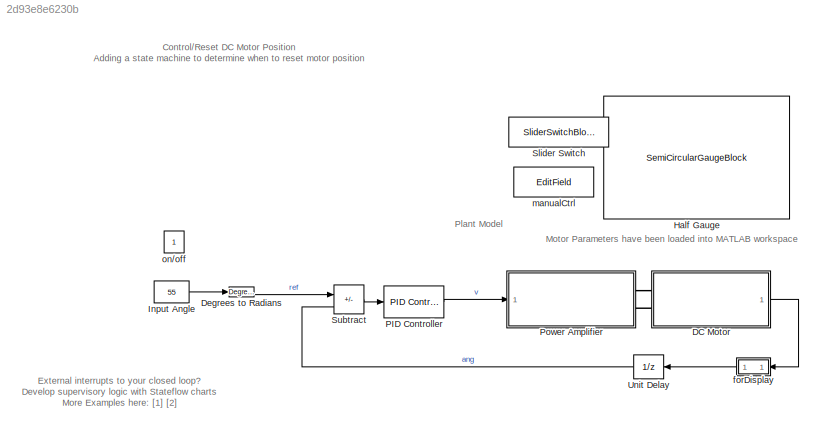
MODEL slx_2d93e8e6230b
KIND model
CONFIG AbsTol = auto
CONFIG EnableMultiTasking = off
CONFIG FixedStep = auto
CONFIG MaxStep = auto
CONFIG MinStep = auto
CONFIG PostLoadFcn = load('dcmtr_params');
CONFIG RelTol = 1e-3
CONFIG SampleTimeConstraint = Unconstrained
CONFIG SolverName = ode15s
CONFIG StartTime = 0.0
CONFIG StopTime = inf
BLOCK [SubSystem] DC Motor
  Ports = [0, 1, 0, 0, 0, 2]
  ReferencedSubsystem = dcmtr
  RequestExecContextInheritance = off
BLOCK [Reference] Degrees to Radians  REF=simulink_extras/Transformations/Degrees to
Radians
  Ports = [1, 1]
  SourceBlock = simulink_extras/Transformations/Degrees to\nRadians
  SourceProductBaseCode = SL
  SourceType = DegreesToRadians
BLOCK [SemiCircularGaugeBlock] Half Gauge
  LabelPosition = Hide
  ScaleMax = 180
BLOCK [Constant] Input Angle
  Value = 55
BLOCK [Reference] PID Controller  REF=slpidlib/PID Controller
  Ports = [1, 1]
  SourceBlock = slpidlib/PID Controller
  SourceProductBaseCode = SL
  SourceType = PID 1dof
BLOCK [SubSystem] Power Amplifier
  Ports = [1, 0, 0, 0, 0, 0, 2]
  ReferencedSubsystem = powerAmp
  RequestExecContextInheritance = off
BLOCK [SliderSwitchBlock] Slider Switch
  LabelPosition = Hide
BLOCK [Sum] Subtract
  IconShape = rectangular
  Inputs = +-
  Ports = [2, 1]
BLOCK [UnitDelay] Unit Delay
  HasFrameUpgradeWarning = on
  NameLocation = top
  SampleTime = Ts
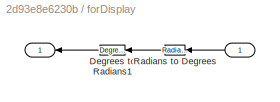
BLOCK [SubSystem] forDisplay
  Ports = [1, 1]
  RequestExecContextInheritance = off
BLOCK [Inport] forDisplay/ 
  NameLocation = top
BLOCK [Outport] forDisplay/  
BLOCK [Reference] forDisplay/Degrees to Radians1  REF=simulink_extras/Transformations/Degrees to
Radians
  NameLocation = top
  Ports = [1, 1]
  SourceBlock = simulink_extras/Transformations/Degrees to\nRadians
  SourceProductBaseCode = SL
  SourceType = DegreesToRadians
BLOCK [Reference] forDisplay/Radians to Degrees  REF=simulink_extras/Transformations/Radians
to Degrees
  NameLocation = top
  Ports = [1, 1]
  SourceBlock = simulink_extras/Transformations/Radians\nto Degrees
  SourceProductBaseCode = SL
  SourceType = RadiansToDegrees
BLOCK [EditField] manualCtrl
  Alignment = Center
  ShowInitialText = on
BLOCK [Constant] on//off
  OutDataTypeStr = boolean
ANNOTATION (root): Control/Reset DC Motor Position Adding a state machine to determine when to reset motor position
ANNOTATION (root): External interrupts to your closed loop? Develop supervisory logic with Stateflow charts More Examples here: [ 1 ] [ 2 ]
ANNOTATION (root): Motor Parameters have been loaded into MATLAB workspace
ANNOTATION (root): Plant Model
LINE DC Motor:1 -> forDisplay:1
LINE Degrees to Radians:1 -> Subtract:1
LINE Input Angle:1 -> Degrees to Radians:1
LINE PID Controller:1 -> Power Amplifier:1
LINE Subtract:1 -> PID Controller:1
LINE Unit Delay:1 -> Subtract:2
LINE forDisplay/ :1 -> forDisplay/Radians to Degrees:1
LINE forDisplay/Degrees to Radians1:1 -> forDisplay/  :1
LINE forDisplay/Radians to Degrees:1 -> forDisplay/Degrees to Radians1:1
LINE forDisplay:1 -> Unit Delay:1
PLINE DC Motor:LConn1 -- Power Amplifier:RConn1
PLINE DC Motor:LConn2 -- Power Amplifier:RConn2
